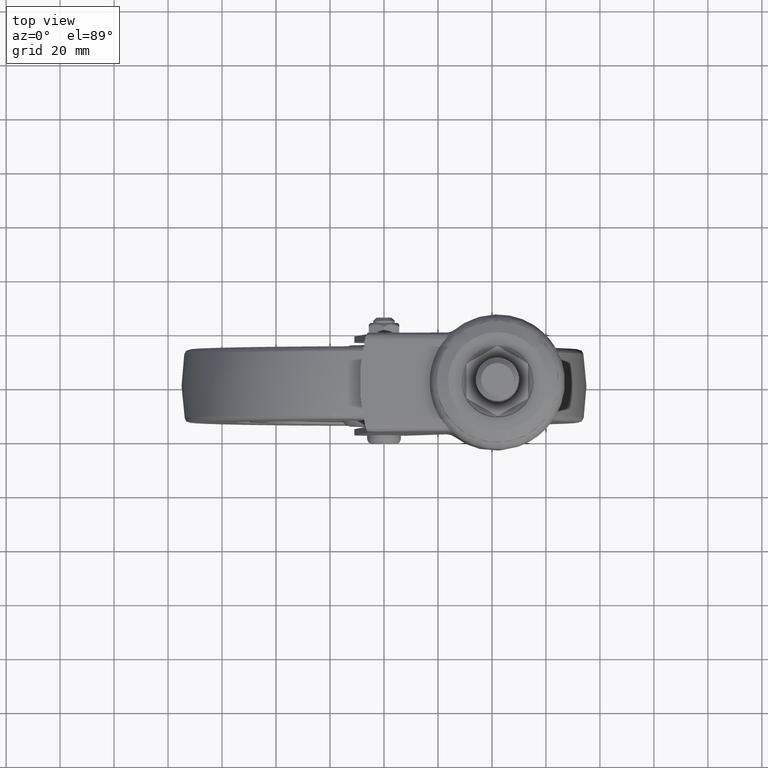
[diagram: clean part render]
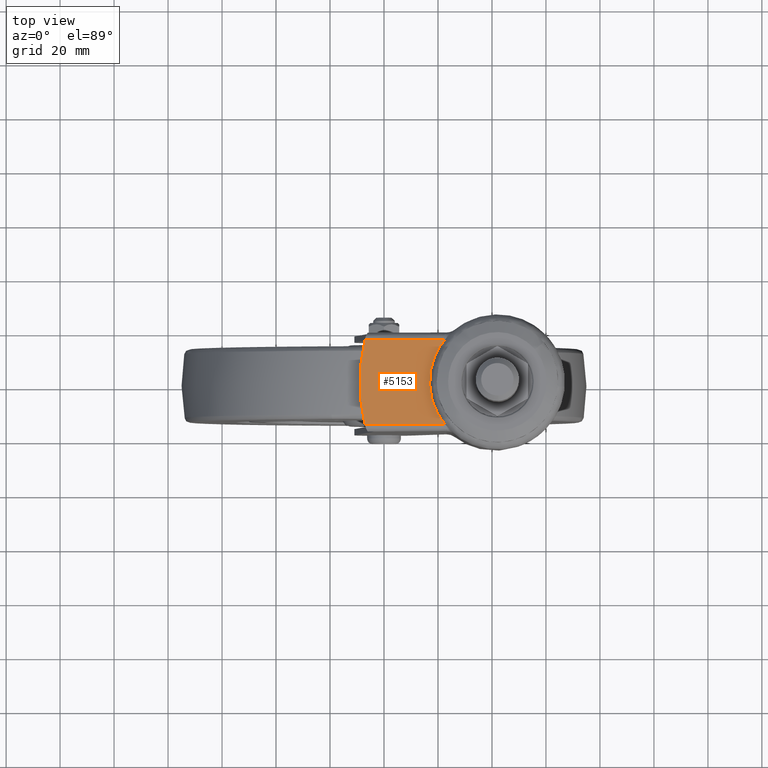
[diagram: same view with one face highlighted and labeled with its STEP entity id]
A machine part, top view. The second image highlights one B-rep face of the part: STEP entity #5153.
In plain terms, the highlighted face is a freeform B-spline surface patch.
Its self-contained STEP definition (entity closure, byte-faithful):
#3406=CARTESIAN_POINT('',(22.715450602066600,15.823707078794699,89.192286304317108));
#3407=VERTEX_POINT('',#3406);
#3577=CARTESIAN_POINT('',(22.674423727272899,-15.776269012735550,89.185052162233490));
#3578=VERTEX_POINT('',#3577);
#3594=CARTESIAN_POINT('',(22.674423727272899,-15.776269012735550,89.185052162233490));
#3595=CARTESIAN_POINT('',(19.875726698947240,-12.530839885601781,88.691566561547006));
#3596=CARTESIAN_POINT('',(18.384046832264101,-8.401044981066640,88.428543259063090));
#3597=CARTESIAN_POINT('',(16.913639573197269,-4.330144420085613,88.169270889760384));
#3598=CARTESIAN_POINT('',(16.920192121371372,0.038387710402321,88.170426280336414));
#3599=CARTESIAN_POINT('',(16.926738452249481,4.402774818787258,88.171580574635868));
#3600=CARTESIAN_POINT('',(18.408565024581549,8.468620460682308,88.432866476167717));
#3601=CARTESIAN_POINT('',(19.910248662914320,12.588950052836340,88.697653712800857));
#3602=CARTESIAN_POINT('',(22.715450602066600,15.823707078794699,89.192286304317108));
#3603=B_SPLINE_CURVE_WITH_KNOTS('',2,(#3594,#3595,#3596,#3597,#3598,#3599,#3600,#3601,#3602),.UNSPECIFIED.,.F.,.U.,(3,2,2,2,3),(0.0,0.250000000000000,0.500000000000000,0.750000000000000,1.0),.UNSPECIFIED.);
#3604=EDGE_CURVE('',#3578,#3407,#3603,.T.);
#4029=CARTESIAN_POINT('',(-7.069952095050669,-15.764482081884649,83.940318266008106));
#4030=VERTEX_POINT('',#4029);
#4031=CARTESIAN_POINT('',(-7.069952095050669,-15.764482081884649,83.940318266008106));
#4032=CARTESIAN_POINT('',(22.674423727272899,-15.776269012735550,89.185052162233490));
#4033=QUASI_UNIFORM_CURVE('',1,(#4031,#4032),.UNSPECIFIED.,.F.,.U.);
#4034=EDGE_CURVE('',#4030,#3578,#4033,.T.);
#4119=CARTESIAN_POINT('',(-7.052246503644080,15.835503255766699,83.943440238240996));
#4120=VERTEX_POINT('',#4119);
#4152=CARTESIAN_POINT('',(22.715450602066600,15.823707078794699,89.192286304317108));
#4153=CARTESIAN_POINT('',(-7.052246503644080,15.835503255766699,83.943440238240996));
#4154=QUASI_UNIFORM_CURVE('',1,(#4152,#4153),.UNSPECIFIED.,.F.,.U.);
#4155=EDGE_CURVE('',#3407,#4120,#4154,.T.);
#4861=CARTESIAN_POINT('',(-7.052246503644041,15.835503255766680,83.943440238240953));
#4862=CARTESIAN_POINT('',(-11.000040309896782,0.037786208843683,83.247337952731783));
#4863=CARTESIAN_POINT('',(-7.069952095050631,-15.764482081884641,83.940318266008035));
#4871=(BOUNDED_CURVE()B_SPLINE_CURVE(2,(#4861,#4862,#4863),.UNSPECIFIED.,.F.,.U.)CURVE()GEOMETRIC_REPRESENTATION_ITEM()QUASI_UNIFORM_CURVE()RATIONAL_B_SPLINE_CURVE((1.0,0.969420646600631,1.0))REPRESENTATION_ITEM(''));
#4872=EDGE_CURVE('',#4120,#4030,#4871,.T.);
#5142=CARTESIAN_POINT('',(24.299636187115919,-17.355276976277491,89.471620854332613));
#5143=CARTESIAN_POINT('',(-10.584176680327539,-17.355276976277491,83.320665901761146));
#5144=CARTESIAN_POINT('',(24.299636187115919,17.414512067202448,89.471620854332613));
#5145=CARTESIAN_POINT('',(-10.584176680327539,17.414512067202448,83.320665901761146));
#5146=B_SPLINE_SURFACE_WITH_KNOTS('',1,1,((#5142,#5144),(#5143,#5145)),.UNSPECIFIED.,.F.,.F.,.U.,(2,2),(2,2),(0.0,35.421951484910842),(0.0,34.769789043479939),.UNSPECIFIED.);
#5147=ORIENTED_EDGE('',*,*,#4034,.T.);
#5148=ORIENTED_EDGE('',*,*,#3604,.T.);
#5149=ORIENTED_EDGE('',*,*,#4155,.T.);
#5150=ORIENTED_EDGE('',*,*,#4872,.T.);
#5151=EDGE_LOOP('',(#5147,#5148,#5149,#5150));
#5152=FACE_OUTER_BOUND('',#5151,.T.);
#5153=ADVANCED_FACE('',(#5152),#5146,.F.);